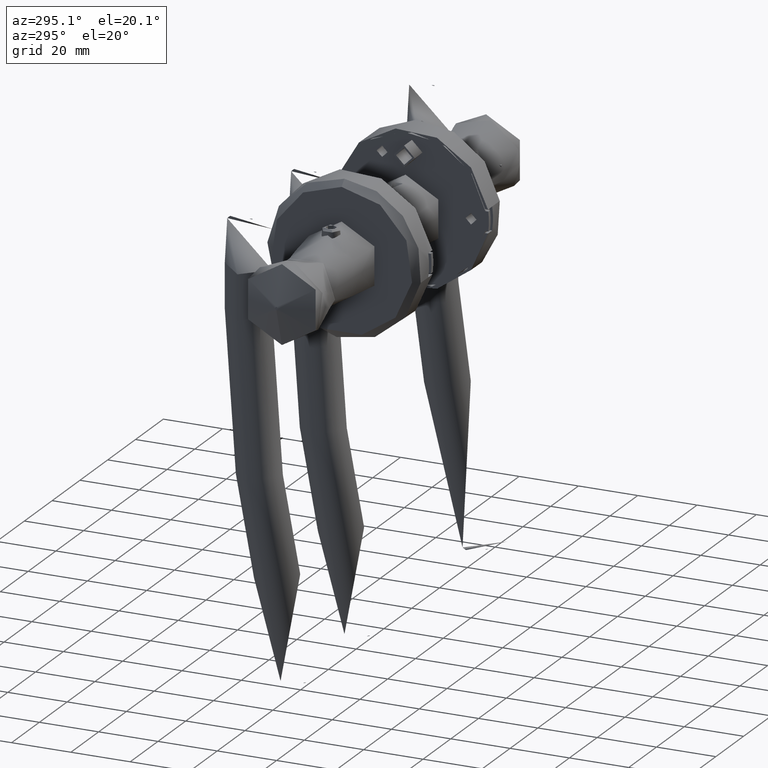
[diagram: clean part render]
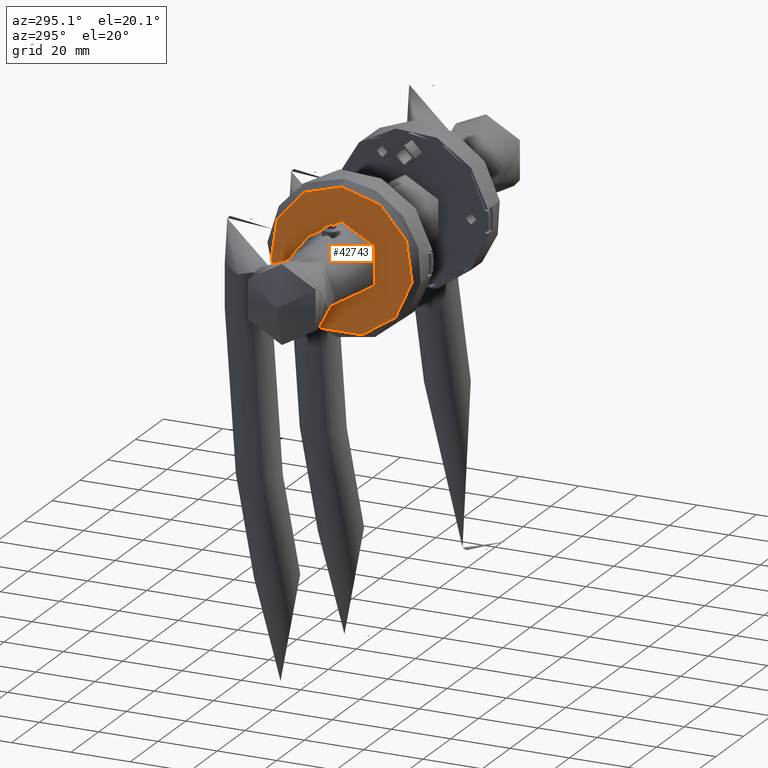
[diagram: same view with one face highlighted and labeled with its STEP entity id]
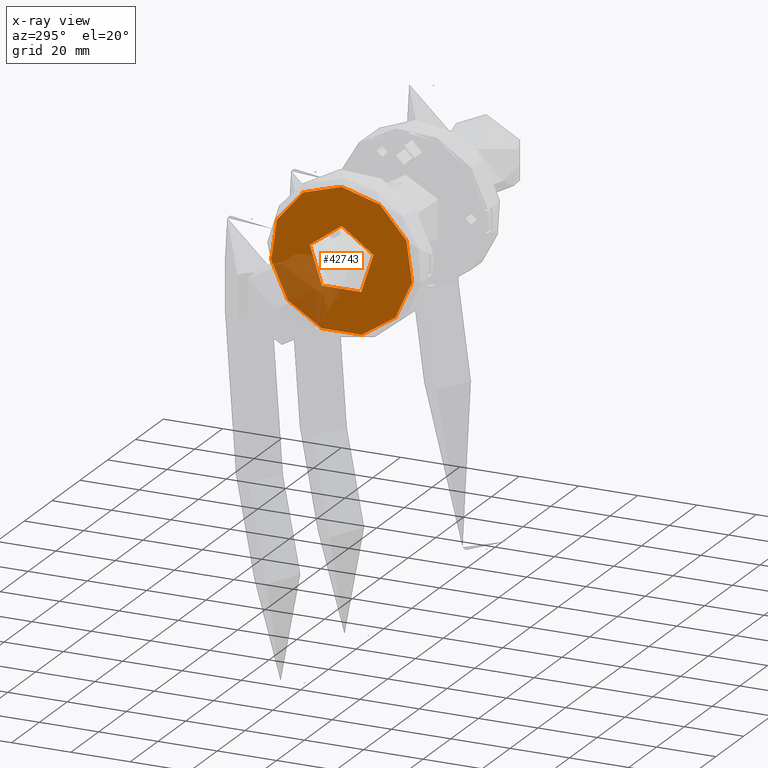
[diagram: x-ray of the same camera — body ghosted, the highlighted face saturated]
A machine part, auxiliary view. The second image highlights one B-rep face of the part: STEP entity #42743.
The next image is the same camera in x-ray: the body ghosted, the highlighted face saturated — about 20% of this face is hidden behind the body in this view.
In plain terms, the highlighted planar face has unit normal (-1, -0, 0).
Its self-contained STEP definition (entity closure, byte-faithful):
#5294 = FACE_OUTER_BOUND ( 'NONE', #44771, .T. ) ;
#7962 = VERTEX_POINT ( 'NONE', #35209 ) ;
#10511 = PLANE ( 'NONE',  #46922 ) ;
#11377 = ORIENTED_EDGE ( 'NONE', *, *, #19676, .T. ) ;
#12598 = VERTEX_POINT ( 'NONE', #39076 ) ;
#13332 = ORIENTED_EDGE ( 'NONE', *, *, #24175, .F. ) ;
#14704 = AXIS2_PLACEMENT_3D ( 'NONE', #33781, #26040, #41356 ) ;
#15283 = AXIS2_PLACEMENT_3D ( 'NONE', #44436, #22330, #18955 ) ;
#18129 = DIRECTION ( 'NONE',  ( 0.0000000000000000000, 0.0000000000000000000, 1.000000000000000000 ) ) ;
#18955 = DIRECTION ( 'NONE',  ( 1.000000000000000000, 0.0000000000000000000, 0.0000000000000000000 ) ) ;
#19676 = EDGE_CURVE ( 'NONE', #7962, #7962, #38910, .T. ) ;
#21820 = CARTESIAN_POINT ( 'NONE',  ( 0.0000000000000000000, 0.0000000000000000000, 10.50000000000000000 ) ) ;
#22330 = DIRECTION ( 'NONE',  ( 0.0000000000000000000, 0.0000000000000000000, 1.000000000000000000 ) ) ;
#24175 = EDGE_CURVE ( 'NONE', #12598, #12598, #45964, .T. ) ;
#24413 = FACE_BOUND ( 'NONE', #35066, .T. ) ;
#26040 = DIRECTION ( 'NONE',  ( 0.0000000000000000000, 0.0000000000000000000, 1.000000000000000000 ) ) ;
#33781 = CARTESIAN_POINT ( 'NONE',  ( 0.0000000000000000000, 0.0000000000000000000, 10.50000000000000000 ) ) ;
#35066 = EDGE_LOOP ( 'NONE', ( #13332 ) ) ;
#35209 = CARTESIAN_POINT ( 'NONE',  ( 24.00000000000000000, 0.0000000000000000000, 10.50000000000000000 ) ) ;
#38910 = CIRCLE ( 'NONE', #15283, 24.00000000000000000 ) ;
#39076 = CARTESIAN_POINT ( 'NONE',  ( 11.30000000000000100, 0.0000000000000000000, 10.50000000000000000 ) ) ;
#41356 = DIRECTION ( 'NONE',  ( 1.000000000000000000, 0.0000000000000000000, 0.0000000000000000000 ) ) ;
#42743 = ADVANCED_FACE ( 'NONE', ( #24413, #5294 ), #10511, .T. ) ;
#43937 = DIRECTION ( 'NONE',  ( 1.000000000000000000, 0.0000000000000000000, -0.0000000000000000000 ) ) ;
#44436 = CARTESIAN_POINT ( 'NONE',  ( 0.0000000000000000000, 0.0000000000000000000, 10.50000000000000000 ) ) ;
#44771 = EDGE_LOOP ( 'NONE', ( #11377 ) ) ;
#45964 = CIRCLE ( 'NONE', #14704, 11.30000000000000100 ) ;
#46922 = AXIS2_PLACEMENT_3D ( 'NONE', #21820, #18129, #43937 ) ;